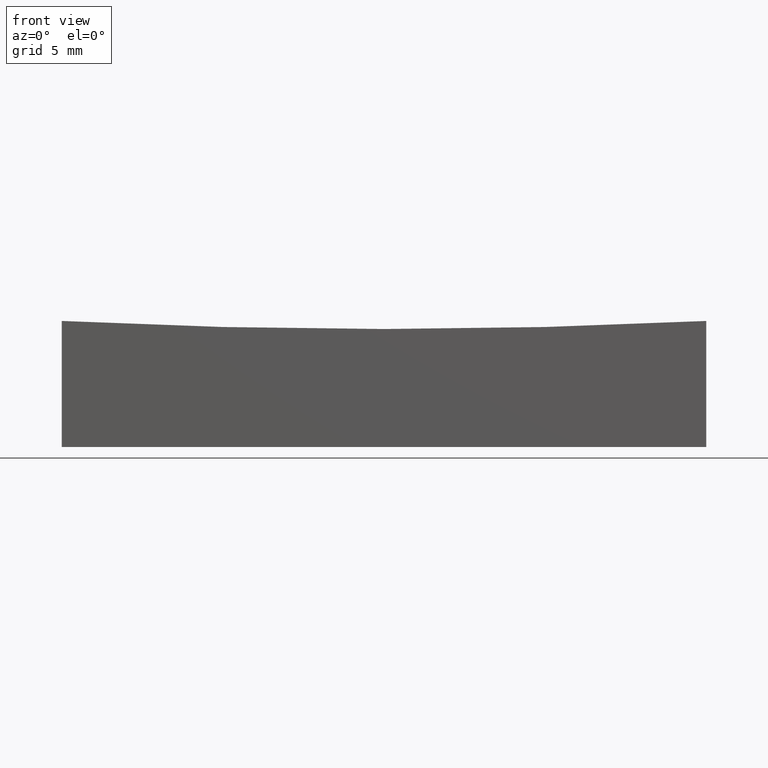
[diagram: clean part render]
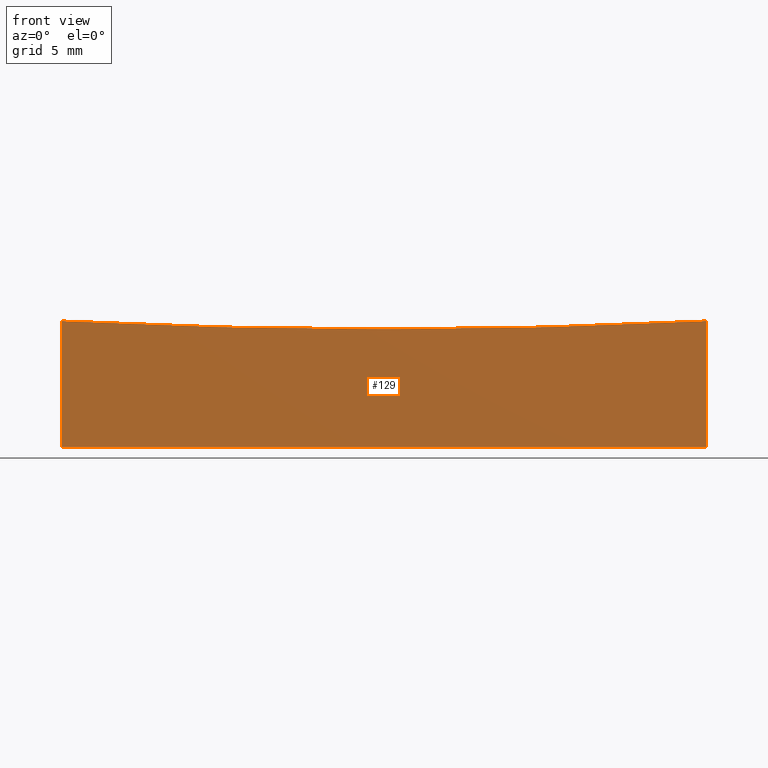
[diagram: same view with one face highlighted and labeled with its STEP entity id]
A machine part, front view. The second image highlights one B-rep face of the part: STEP entity #129.
In plain terms, the highlighted planar face has unit normal (0, 1, 0).
Its self-contained STEP definition (entity closure, byte-faithful):
#12 = EDGE_CURVE ( 'NONE', #127, #234, #188, .T. ) ;
#13 = CARTESIAN_POINT ( 'NONE',  ( 24.99999999999999645, -12.50000000000000000, 9.781861307103511649 ) ) ;
#28 = LINE ( 'NONE', #109, #128 ) ;
#33 = AXIS2_PLACEMENT_3D ( 'NONE', #172, #248, #216 ) ;
#34 = CARTESIAN_POINT ( 'NONE',  ( 0.000000000000000000, -12.49999999999999645, 509.0000000000000000 ) ) ;
#36 = EDGE_CURVE ( 'NONE', #140, #234, #28, .T. ) ;
#43 = ORIENTED_EDGE ( 'NONE', *, *, #12, .F. ) ;
#58 = VECTOR ( 'NONE', #147, 1000.000000000000000 ) ;
#63 = CARTESIAN_POINT ( 'NONE',  ( 24.99999999999999645, -12.50000000000000000, 0.000000000000000000 ) ) ;
#64 = CIRCLE ( 'NONE', #205, 499.8437255783051683 ) ;
#65 = LINE ( 'NONE', #251, #142 ) ;
#86 = DIRECTION ( 'NONE',  ( 1.000000000000000000, 0.000000000000000000, 0.000000000000000000 ) ) ;
#89 = ORIENTED_EDGE ( 'NONE', *, *, #102, .F. ) ;
#92 = PLANE ( 'NONE',  #33 ) ;
#97 = VERTEX_POINT ( 'NONE', #192 ) ;
#102 = EDGE_CURVE ( 'NONE', #97, #127, #64, .T. ) ;
#109 = CARTESIAN_POINT ( 'NONE',  ( -24.99999999999999645, -12.50000000000000000, 0.000000000000000000 ) ) ;
#127 = VERTEX_POINT ( 'NONE', #13 ) ;
#128 = VECTOR ( 'NONE', #86, 1000.000000000000000 ) ;
#129 = ADVANCED_FACE ( 'NONE', ( #151 ), #92, .F. ) ;
#140 = VERTEX_POINT ( 'NONE', #160 ) ;
#142 = VECTOR ( 'NONE', #181, 1000.000000000000000 ) ;
#145 = CARTESIAN_POINT ( 'NONE',  ( 24.99999999999999645, -12.50000000000000000, 15.00000000000000000 ) ) ;
#147 = DIRECTION ( 'NONE',  ( -0.000000000000000000, -0.000000000000000000, -1.000000000000000000 ) ) ;
#151 = FACE_OUTER_BOUND ( 'NONE', #161, .T. ) ;
#160 = CARTESIAN_POINT ( 'NONE',  ( -24.99999999999999645, -12.50000000000000000, 0.000000000000000000 ) ) ;
#161 = EDGE_LOOP ( 'NONE', ( #89, #243, #167, #43 ) ) ;
#167 = ORIENTED_EDGE ( 'NONE', *, *, #36, .T. ) ;
#169 = DIRECTION ( 'NONE',  ( -0.000000000000000000, -1.000000000000000000, -0.000000000000000000 ) ) ;
#172 = CARTESIAN_POINT ( 'NONE',  ( -24.99999999999999645, -12.50000000000000000, 15.00000000000000000 ) ) ;
#181 = DIRECTION ( 'NONE',  ( -0.000000000000000000, -0.000000000000000000, -1.000000000000000000 ) ) ;
#188 = LINE ( 'NONE', #145, #58 ) ;
#192 = CARTESIAN_POINT ( 'NONE',  ( -24.99999999999998934, -12.49999999999999645, 9.781861307103511649 ) ) ;
#205 = AXIS2_PLACEMENT_3D ( 'NONE', #34, #169, #227 ) ;
#216 = DIRECTION ( 'NONE',  ( 0.000000000000000000, -0.000000000000000000, 1.000000000000000000 ) ) ;
#227 = DIRECTION ( 'NONE',  ( 1.421085471520200214E-14, 0.000000000000000000, 1.000000000000000000 ) ) ;
#233 = EDGE_CURVE ( 'NONE', #97, #140, #65, .T. ) ;
#234 = VERTEX_POINT ( 'NONE', #63 ) ;
#243 = ORIENTED_EDGE ( 'NONE', *, *, #233, .T. ) ;
#248 = DIRECTION ( 'NONE',  ( 0.000000000000000000, 1.000000000000000000, 0.000000000000000000 ) ) ;
#251 = CARTESIAN_POINT ( 'NONE',  ( -24.99999999999999645, -12.50000000000000000, 15.00000000000000000 ) ) ;